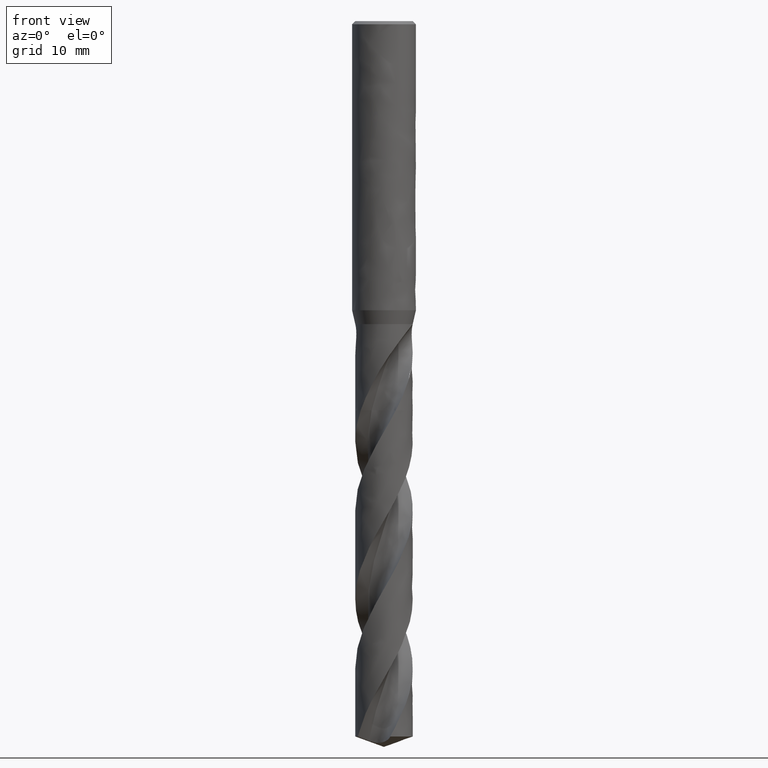
[diagram: clean part render]
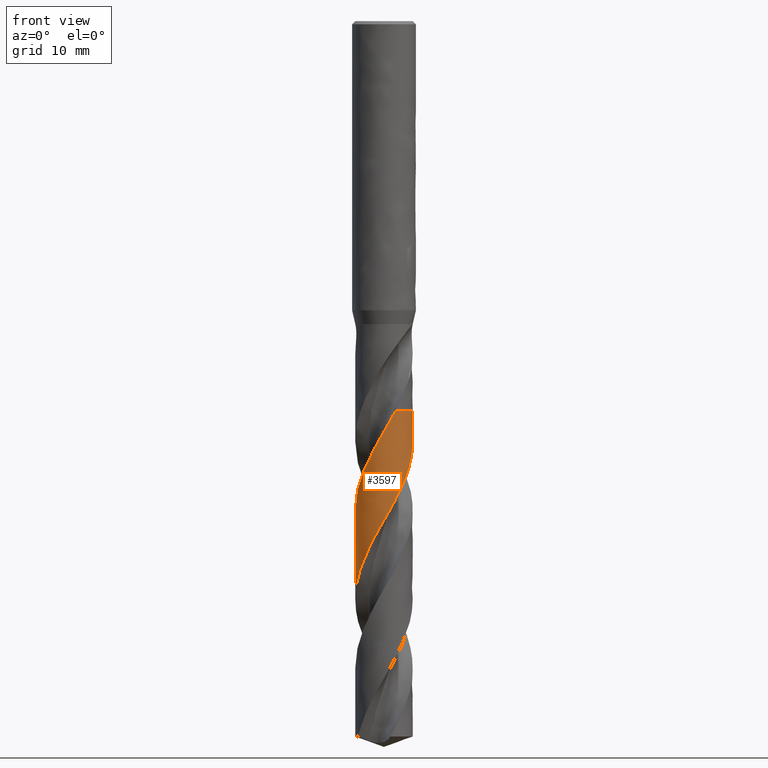
[diagram: same view with one face highlighted and labeled with its STEP entity id]
A machine part, front view. The second image highlights one B-rep face of the part: STEP entity #3597.
In plain terms, the highlighted face is a freeform B-spline surface patch.
Its self-contained STEP definition (entity closure, byte-faithful):
#1922 = VERTEX_POINT('', #1923);
#1923 = CARTESIAN_POINT('', (1.48565845238929, -3.27914912177599, -48.8));
#1996 = EDGE_CURVE('', #1997, #1922, #1999, .T.);
#1997 = VERTEX_POINT('', #1998);
#1998 = CARTESIAN_POINT('', (2.91789542748924, 2.10852703901026, -48.8));
#1999 = CIRCLE('', #2000, 3.6);
#2000 = AXIS2_PLACEMENT_3D('', #2001, #2002, #2003);
#2001 = CARTESIAN_POINT('', (1.82970693484747E-31, 2.98813818991954E-15, -48.8));
#2002 = DIRECTION('', (3.74939945665464E-33, 6.12323399573677E-17, -1.));
#2003 = DIRECTION('', (-1., 6.12323399573677E-17, 0.));
#3193 = EDGE_CURVE('', #1997, #3194, #3196, .T.);
#3194 = VERTEX_POINT('', #3195);
#3195 = CARTESIAN_POINT('', (-3.6, 4.65859184901154E-15, -72.4805785350525));
#3196 = B_SPLINE_CURVE_WITH_KNOTS('', 3, (#3197, #3198, #3199, #3200, #3201, #3202, #3203, #3204, #3205, #3206, #3207, #3208, #3209, #3210, #3211, #3212, #3213, #3214, #3215, #3216, #3217, #3218, #3219, #3220, #3221, #3222, #3223, #3224, #3225, #3226, #3227, #3228, #3229, #3230, #3231, #3232, #3233, #3234, #3235, #3236, #3237, #3238, #3239, #3240, #3241, #3242, #3243, #3244, #3245, #3246, #3247, #3248, #3249, #3250, #3251, #3252, #3253, #3254, #3255, #3256, #3257, #3258, #3259, #3260, #3261, #3262, #3263, #3264, #3265, #3266, #3267, #3268, #3269, #3270, #3271, #3272, #3273, #3274, #3275, #3276, #3277, #3278, #3279, #3280, #3281, #3282, #3283, #3284, #3285, #3286, #3287, #3288, #3289, #3290, #3291, #3292, #3293, #3294, #3295, #3296, #3297, #3298, #3299, #3300, #3301, #3302, #3303, #3304, #3305, #3306, #3307, #3308, #3309, #3310, #3311, #3312, #3313, #3314, #3315, #3316, #3317, #3318, #3319, #3320, #3321, #3322, #3323, #3324, #3325, #3326, #3327, #3328, #3329), .UNSPECIFIED., .F., .U., (4, 3, 3, 3, 3, 3, 3, 3, 3, 3, 3, 3, 3, 3, 3, 3, 3, 3, 3, 3, 3, 3, 3, 3, 3, 3, 3, 3, 3, 3, 3, 3, 3, 3, 3, 3, 3, 3, 3, 3, 3, 3, 3, 3, 4), (10.2688327684211, 10.5904762975584, 11.2550290365994, 11.9194064326622, 12.5836084944612, 13.2476331349285, 13.9114769530557, 14.5751360851994, 14.7720541362325, 14.8304380506915, 15.496953751672, 16.1632626883589, 16.8293726199015, 17.4952901409352, 18.1610208920018, 18.8265695075626, 19.4919396895835, 20.1571342652735, 20.8221552275591, 21.4870037605992, 22.151680263969, 22.8161845303054, 23.4805156967486, 24.1446721408448, 24.8086514421674, 25.4724503295536, 26.1360646123165, 26.1944452534782, 26.8609558360511, 27.5272609980883, 28.1933685234551, 28.8592850759449, 29.525016222846, 30.1905665339922, 30.8559396584352, 31.5211383816956, 32.186164666255, 32.8510196858809, 33.5157039628795, 34.1802173565932, 34.8445590028556, 35.50872728991, 36.1727198211926, 36.8365333639412, 37.5558622147171), .UNSPECIFIED.);
#3197 = CARTESIAN_POINT('', (2.91789542748924, 2.10852703901026, -48.8));
#3198 = CARTESIAN_POINT('', (2.94917599764512, 2.06523926942588, -48.8929658325838));
#3199 = CARTESIAN_POINT('', (2.97949861552765, 2.0212470603507, -48.9859578901763));
#3200 = CARTESIAN_POINT('', (3.00881902065553, 1.97661531435469, -49.0789270903738));
#3201 = CARTESIAN_POINT('', (3.06939836944516, 1.88440096410988, -49.2710122126936));
#3202 = CARTESIAN_POINT('', (3.12574751513569, 1.78937817713627, -49.4631500541439));
#3203 = CARTESIAN_POINT('', (3.17760057110447, 1.69199722532769, -49.655239223331));
#3204 = CARTESIAN_POINT('', (3.22943994558684, 1.59464196759139, -49.8472777095775));
#3205 = CARTESIAN_POINT('', (3.27681118113237, 1.49488156992629, -50.0393698026863));
#3206 = CARTESIAN_POINT('', (3.31949058710024, 1.39319138748159, -50.2314159488493));
#3207 = CARTESIAN_POINT('', (3.36215872964725, 1.29152804185192, -50.4234114125691));
#3208 = CARTESIAN_POINT('', (3.40016009890116, 1.1878824149412, -50.6154610447468));
#3209 = CARTESIAN_POINT('', (3.43331678836474, 1.08274458240752, -50.8074634781583));
#3210 = CARTESIAN_POINT('', (3.46646462102957, 0.977634834240515, -50.9994146239732));
#3211 = CARTESIAN_POINT('', (3.49478729288488, 0.870979864099297, -51.1914194777569));
#3212 = CARTESIAN_POINT('', (3.51815239205771, 0.763284839531539, -51.3833776351083));
#3213 = CARTESIAN_POINT('', (3.54151112861738, 0.655619141686287, -51.5752835198163));
#3214 = CARTESIAN_POINT('', (3.55992706850042, 0.546858367860445, -51.767243177248));
#3215 = CARTESIAN_POINT('', (3.57331485248464, 0.43751681683437, -51.9591561630279));
#3216 = CARTESIAN_POINT('', (3.58669891189391, 0.328205685390935, -52.1510157572757));
#3217 = CARTESIAN_POINT('', (3.59506454199886, 0.218257381291735, -52.3429288330733));
#3218 = CARTESIAN_POINT('', (3.5983738684109, 0.108191973538013, -52.5347954919365));
#3219 = CARTESIAN_POINT('', (3.59935579734961, 0.0755338444906271, -52.5917253324098));
#3220 = CARTESIAN_POINT('', (3.59989309422997, 0.0428621076523837, -52.6486567729271));
#3221 = CARTESIAN_POINT('', (3.59998557720696, 0.0101903828132533, -52.7055872055319));
#3222 = CARTESIAN_POINT('', (3.60001299733522, 0.000503595958372986, -52.7224664174166));
#3223 = CARTESIAN_POINT('', (3.60000131947857, -0.00918327486539542, -52.7393456899062));
#3224 = CARTESIAN_POINT('', (3.59995054519472, -0.018869874198466, -52.7562249553113));
#3225 = CARTESIAN_POINT('', (3.5993709016798, -0.129452910715015, -52.9489200754961));
#3226 = CARTESIAN_POINT('', (3.59369044468935, -0.240031647893479, -53.1416695591187));
#3227 = CARTESIAN_POINT('', (3.5829379229799, -0.350079762446544, -53.3343717881018));
#3228 = CARTESIAN_POINT('', (3.57218873688213, -0.460093738237925, -53.5270142376375));
#3229 = CARTESIAN_POINT('', (3.55636503912178, -0.56963460373598, -53.7197108641921));
#3230 = CARTESIAN_POINT('', (3.5355438528677, -0.678181144275187, -53.9123604423755));
#3231 = CARTESIAN_POINT('', (3.51472888523527, -0.786695265438369, -54.1049524822986));
#3232 = CARTESIAN_POINT('', (3.48890849681852, -0.894272518805949, -54.2975984673689));
#3233 = CARTESIAN_POINT('', (3.45820729063265, -1.00040108707238, -54.4901976214364));
#3234 = CARTESIAN_POINT('', (3.42751495270474, -1.10649899936019, -54.6827411418923));
#3235 = CARTESIAN_POINT('', (3.39192843928645, -1.21120499175335, -54.8753384639732));
#3236 = CARTESIAN_POINT('', (3.35161871301049, -1.31402130979601, -55.0678890406552));
#3237 = CARTESIAN_POINT('', (3.31132029240831, -1.4168087909336, -55.2603856126538));
#3238 = CARTESIAN_POINT('', (3.26628013142594, -1.51776171626491, -55.452935991377));
#3239 = CARTESIAN_POINT('', (3.21671382746292, -1.61640098744367, -55.6454395885008));
#3240 = CARTESIAN_POINT('', (3.16716108421319, -1.71501327216655, -55.8378905190775));
#3241 = CARTESIAN_POINT('', (3.11305884016241, -1.81136462762603, -56.0303953245433));
#3242 = CARTESIAN_POINT('', (3.05466525572241, -1.90499873372198, -56.2228532711538));
#3243 = CARTESIAN_POINT('', (2.99628732659854, -1.99860773652027, -56.4152596198015));
#3244 = CARTESIAN_POINT('', (2.93359018760973, -2.08954936195819, -56.6077199045945));
#3245 = CARTESIAN_POINT('', (2.86687223130578, -2.17739376534604, -56.8001332776061));
#3246 = CARTESIAN_POINT('', (2.80017188338861, -2.26521498459702, -56.9924958683503));
#3247 = CARTESIAN_POINT('', (2.72941857802195, -2.34998574855563, -57.1849123959697));
#3248 = CARTESIAN_POINT('', (2.65494840770164, -2.43130601785182, -57.3772820318661));
#3249 = CARTESIAN_POINT('', (2.58049767382938, -2.51260506284865, -57.5696014599756));
#3250 = CARTESIAN_POINT('', (2.50229380314759, -2.59049714310545, -57.7619747282341));
#3251 = CARTESIAN_POINT('', (2.42070788379863, -2.6646150456145, -57.9543012298181));
#3252 = CARTESIAN_POINT('', (2.33914311836707, -2.73871373054286, -58.1465778642319));
#3253 = CARTESIAN_POINT('', (2.25415594530323, -2.80907843764326, -58.3389081260101));
#3254 = CARTESIAN_POINT('', (2.16614956810491, -2.87537754887926, -58.5311918633132));
#3255 = CARTESIAN_POINT('', (2.07816596257158, -2.941659505209, -58.7234258471668));
#3256 = CARTESIAN_POINT('', (1.98711881646878, -3.00391253313455, -58.9157132103256));
#3257 = CARTESIAN_POINT('', (1.89344002992988, -3.06184337500452, -59.1079542559912));
#3258 = CARTESIAN_POINT('', (1.79978551829193, -3.11975920530678, -59.300145486405));
#3259 = CARTESIAN_POINT('', (1.7034516503029, -3.17338544666839, -59.492389996227));
#3260 = CARTESIAN_POINT('', (1.60489490048757, -3.22246991582373, -59.6845882323045));
#3261 = CARTESIAN_POINT('', (1.50636382419117, -3.27154159873103, -59.8767364017445));
#3262 = CARTESIAN_POINT('', (1.4055596266837, -3.31609949446977, -60.068937893084));
#3263 = CARTESIAN_POINT('', (1.30295905249632, -3.35593469953125, -60.2610930405373));
#3264 = CARTESIAN_POINT('', (1.20038546276192, -3.3957594277389, -60.4531976502466));
#3265 = CARTESIAN_POINT('', (1.09596344441922, -3.43088455056103, -60.6453556746756));
#3266 = CARTESIAN_POINT('', (0.990185793523939, -3.46114606659461, -60.8374672583394));
#3267 = CARTESIAN_POINT('', (0.884436355479162, -3.49139951132372, -61.0295276023004));
#3268 = CARTESIAN_POINT('', (0.777277897595626, -3.5168074442571, -61.2216414287738));
#3269 = CARTESIAN_POINT('', (0.669215165956926, -3.53725190814187, -61.4137087612758));
#3270 = CARTESIAN_POINT('', (0.561181796713651, -3.55769081693449, -61.6057239059711));
#3271 = CARTESIAN_POINT('', (0.452189689327991, -3.5731793613002, -61.7977925174252));
#3272 = CARTESIAN_POINT('', (0.342751557508167, -3.58364637901481, -61.989814678904));
#3273 = CARTESIAN_POINT('', (0.233343860787694, -3.59411048581784, -62.1817834383969));
#3274 = CARTESIAN_POINT('', (0.123434679280249, -3.59956118344656, -62.3738055238137));
#3275 = CARTESIAN_POINT('', (0.0135408097294699, -3.59997453414221, -62.565781336953));
#3276 = CARTESIAN_POINT('', (0.00387303323526397, -3.60001089815556, -62.5826701703457));
#3277 = CARTESIAN_POINT('', (-0.00579486498062392, -3.60000831735659, -62.5995590628141));
#3278 = CARTESIAN_POINT('', (-0.0154625313234498, -3.59996679291977, -62.6164479473615));
#3279 = CARTESIAN_POINT('', (-0.125834767702789, -3.59949272350179, -62.8092622100125));
#3280 = CARTESIAN_POINT('', (-0.236207487120797, -3.5939373294855, -63.0021303891101));
#3281 = CARTESIAN_POINT('', (-0.346057210518445, -3.58332867694972, -63.1949517830157));
#3282 = CARTESIAN_POINT('', (-0.455873077905981, -3.57272329403208, -63.3877137487965));
#3283 = CARTESIAN_POINT('', (-0.565223453463357, -3.55706222934346, -63.5805293424253));
#3284 = CARTESIAN_POINT('', (-0.673589575464583, -3.53642150822359, -63.7732984233554));
#3285 = CARTESIAN_POINT('', (-0.781923554356667, -3.51578690946871, -63.9660103259213));
#3286 = CARTESIAN_POINT('', (-0.889330761977647, -3.49016476944, -64.158775678406));
#3287 = CARTESIAN_POINT('', (-0.995301973150113, -3.45967830617875, -64.3514946266165));
#3288 = CARTESIAN_POINT('', (-1.10124280240031, -3.42920058337962, -64.5441583223482));
#3289 = CARTESIAN_POINT('', (-1.20580399861552, -3.39384536595041, -64.7368754775726));
#3290 = CARTESIAN_POINT('', (-1.30849069927774, -3.35378175943274, -64.929546179762));
#3291 = CARTESIAN_POINT('', (-1.41114880973878, -3.31372930749072, -65.1221632382554));
#3292 = CARTESIAN_POINT('', (-1.51198679486594, -3.26895030926487, -65.314833854425));
#3293 = CARTESIAN_POINT('', (-1.610528490631, -3.21965805340658, -65.5074579066117));
#3294 = CARTESIAN_POINT('', (-1.70904341904109, -3.17037918704093, -65.7000296354002));
#3295 = CARTESIAN_POINT('', (-1.80531390627612, -3.11656423011123, -65.8926550236096));
#3296 = CARTESIAN_POINT('', (-1.89888636827111, -3.05846866264707, -66.0852337553423));
#3297 = CARTESIAN_POINT('', (-1.99243391885702, -3.00038856172525, -66.2777612176366));
#3298 = CARTESIAN_POINT('', (-2.08333251070865, -2.93800057612044, -66.4703423745903));
#3299 = CARTESIAN_POINT('', (-2.17115462177291, -2.87160018253832, -66.6628768666211));
#3300 = CARTESIAN_POINT('', (-2.25895371375289, -2.80521719318661, -66.8553608933689));
#3301 = CARTESIAN_POINT('', (-2.34372253080104, -2.73479018552595, -67.0478985286513));
#3302 = CARTESIAN_POINT('', (-2.42506275947583, -2.66065229081205, -67.2403896249319));
#3303 = CARTESIAN_POINT('', (-2.50638190241657, -2.58653361477946, -67.4328308219668));
#3304 = CARTESIAN_POINT('', (-2.5843158091847, -2.50866806111225, -67.6253253828675));
#3305 = CARTESIAN_POINT('', (-2.65849825937009, -2.42742394421045, -67.8177736954477));
#3306 = CARTESIAN_POINT('', (-2.7326616052694, -2.34620075019333, -68.0101724466073));
#3307 = CARTESIAN_POINT('', (-2.80311387087584, -2.261558603129, -68.2026242521225));
#3308 = CARTESIAN_POINT('', (-2.86952394973271, -2.17389795112612, -68.3950300734631));
#3309 = CARTESIAN_POINT('', (-2.9359169736964, -2.08625981141479, -68.5873864827146));
#3310 = CARTESIAN_POINT('', (-2.99830457744084, -1.99555893039083, -68.7797958151115));
#3311 = CARTESIAN_POINT('', (-3.0563939337948, -1.90222399350401, -68.9721592252963));
#3312 = CARTESIAN_POINT('', (-3.11446835599073, -1.80891305204053, -69.1644731808866));
#3313 = CARTESIAN_POINT('', (-3.16827697082298, -1.71292087603682, -69.356840113716));
#3314 = CARTESIAN_POINT('', (-3.21756789785887, -1.61470022687434, -69.549161034094));
#3315 = CARTESIAN_POINT('', (-3.26684608536059, -1.51650496342464, -69.7414322479826));
#3316 = CARTESIAN_POINT('', (-3.31163429124059, -1.41603188353586, -69.9337565701992));
#3317 = CARTESIAN_POINT('', (-3.35172360719748, -1.3137537291879, -70.1260347413651));
#3318 = CARTESIAN_POINT('', (-3.39180246189231, -1.21150226420966, -70.3182627377578));
#3319 = CARTESIAN_POINT('', (-3.42720525963071, -1.10739473714154, -70.5105439574352));
#3320 = CARTESIAN_POINT('', (-3.45776756201982, -1.00191990051279, -70.7027789276976));
#3321 = CARTESIAN_POINT('', (-3.48832177684865, -0.896472975200629, -70.8949630277119));
#3322 = CARTESIAN_POINT('', (-3.51405345973113, -0.789606358761562, -71.0872003721171));
#3323 = CARTESIAN_POINT('', (-3.53484372088242, -0.681820994791318, -71.2793914820961));
#3324 = CARTESIAN_POINT('', (-3.55562837772614, -0.574064685883245, -71.4715307842559));
#3325 = CARTESIAN_POINT('', (-3.57148474063179, -0.465335855168378, -71.6637231959877));
#3326 = CARTESIAN_POINT('', (-3.58234022352961, -0.356143963702913, -71.8558695590376));
#3327 = CARTESIAN_POINT('', (-3.59410355997072, -0.237820258710882, -72.0640852907341));
#3328 = CARTESIAN_POINT('', (-3.6, -0.118892512444974, -72.2723545290932));
#3329 = CARTESIAN_POINT('', (-3.6, 4.04146397243279E-15, -72.4805785350525));
#3597 = ADVANCED_FACE('', (#3598), #3692, .T.);
#3598 = FACE_OUTER_BOUND('', #3599, .T.);
#3599 = EDGE_LOOP('', (#3600, #3601, #3619, #3685, #3691));
#3600 = ORIENTED_EDGE('', *, *, #1996, .T.);
#3601 = ORIENTED_EDGE('', *, *, #3602, .T.);
#3602 = EDGE_CURVE('', #1922, #3603, #3605, .T.);
#3603 = VERTEX_POINT('', #3604);
#3604 = CARTESIAN_POINT('', (0.575137813359913, -3.55376089455151, -50.4543942545865));
#3605 = B_SPLINE_CURVE_WITH_KNOTS('', 3, (#3606, #3607, #3608, #3609, #3610, #3611, #3612, #3613, #3614, #3615, #3616, #3617, #3618), .UNSPECIFIED., .F., .U., (4, 3, 3, 3, 4), (4.31228855287666, 4.6785391982865, 5.34269317664626, 6.00666439698617, 6.22179238856214), .UNSPECIFIED.);
#3606 = CARTESIAN_POINT('', (1.48565845238929, -3.27914912177599, -48.8));
#3607 = CARTESIAN_POINT('', (1.43010571945915, -3.30431796410857, -48.9057582906757));
#3608 = CARTESIAN_POINT('', (1.37390282636271, -3.32807897345134, -49.0115491892231));
#3609 = CARTESIAN_POINT('', (1.31715040854091, -3.35039024611764, -49.1173119567285));
#3610 = CARTESIAN_POINT('', (1.21423633985522, -3.39084920691215, -49.3091007322061));
#3611 = CARTESIAN_POINT('', (1.10943024564872, -3.42657141038412, -49.500941058696));
#3612 = CARTESIAN_POINT('', (1.00323449107107, -3.45738637643013, -49.6927327869287));
#3613 = CARTESIAN_POINT('', (0.897067958822056, -3.48819286299343, -49.8844717390318));
#3614 = CARTESIAN_POINT('', (0.789458777970215, -3.51411042841998, -50.0762648656304));
#3615 = CARTESIAN_POINT('', (0.680922230517774, -3.53501696120191, -50.2680119195632));
#3616 = CARTESIAN_POINT('', (0.64575617399189, -3.54179071926614, -50.3301383451363));
#3617 = CARTESIAN_POINT('', (0.610488841522032, -3.54803971250227, -50.3922669581037));
#3618 = CARTESIAN_POINT('', (0.575137813359997, -3.5537608945515, -50.4543942545863));
#3619 = ORIENTED_EDGE('', *, *, #3620, .T.);
#3620 = EDGE_CURVE('', #3603, #3621, #3623, .T.);
#3621 = VERTEX_POINT('', #3622);
#3622 = CARTESIAN_POINT('', (-3.6, 3.97359197793741E-15, -61.2936816836329));
#3623 = B_SPLINE_CURVE_WITH_KNOTS('', 3, (#3624, #3625, #3626, #3627, #3628, #3629, #3630, #3631, #3632, #3633, #3634, #3635, #3636, #3637, #3638, #3639, #3640, #3641, #3642, #3643, #3644, #3645, #3646, #3647, #3648, #3649, #3650, #3651, #3652, #3653, #3654, #3655, #3656, #3657, #3658, #3659, #3660, #3661, #3662, #3663, #3664, #3665, #3666, #3667, #3668, #3669, #3670, #3671, #3672, #3673, #3674, #3675, #3676, #3677, #3678, #3679, #3680, #3681, #3682, #3683, #3684), .UNSPECIFIED., .F., .U., (4, 3, 3, 3, 3, 3, 3, 3, 3, 3, 3, 3, 3, 3, 3, 3, 3, 3, 3, 3, 4), (0., 0.66372381697545, 1.10642865111097, 1.16480280980698, 1.83133997058932, 2.49766730194379, 3.16379283118719, 3.82972337235012, 4.4954647683748, 5.16102187573037, 5.82639859425428, 6.49159793214113, 7.15662204886815, 7.8214722833846, 8.48614917178621, 9.15065255685542, 9.81498168556948, 10.4791350431885, 11.1431103123068, 11.8069043214462, 12.5022924759629), .UNSPECIFIED.);
#3624 = CARTESIAN_POINT('', (0.575137813359913, -3.55376089455151, -50.4543942545865));
#3625 = CARTESIAN_POINT('', (0.466071023985707, -3.57141217628153, -50.6460725483209));
#3626 = CARTESIAN_POINT('', (0.356172011804621, -3.58404016954607, -50.8378072186316));
#3627 = CARTESIAN_POINT('', (0.24596549527892, -3.59158752853561, -51.0294977548289));
#3628 = CARTESIAN_POINT('', (0.172457574708142, -3.5966216289011, -51.1573556452076));
#3629 = CARTESIAN_POINT('', (0.0987913325334737, -3.59939822987528, -51.2852313827033));
#3630 = CARTESIAN_POINT('', (0.0251226125500178, -3.59991233981311, -51.413094794484));
#3631 = CARTESIAN_POINT('', (0.0154088050203499, -3.59998012930349, -51.4299546038088));
#3632 = CARTESIAN_POINT('', (0.00569478851356756, -3.6000086011976, -51.4468144966602));
#3633 = CARTESIAN_POINT('', (-0.00401907762509382, -3.59999775652916, -51.4636744050122));
#3634 = CARTESIAN_POINT('', (-0.114935498536626, -3.59987392820046, -51.6561869087482));
#3635 = CARTESIAN_POINT('', (-0.225863729813669, -3.59461863705556, -51.8487573985035));
#3636 = CARTESIAN_POINT('', (-0.336273287723603, -3.58426007370608, -52.0412826216392));
#3637 = CARTESIAN_POINT('', (-0.446648088120031, -3.5739047712872, -52.2337472368151));
#3638 = CARTESIAN_POINT('', (-0.556561723033484, -3.55844403776045, -52.4262695989985));
#3639 = CARTESIAN_POINT('', (-0.665488832344058, -3.53795486319811, -52.6187469626768));
#3640 = CARTESIAN_POINT('', (-0.774382952282028, -3.51747189393231, -52.8111660331762));
#3641 = CARTESIAN_POINT('', (-0.882348289121981, -3.49195275605932, -53.0036424707788));
#3642 = CARTESIAN_POINT('', (-0.988868532452431, -3.46152264553132, -53.1960743449914));
#3643 = CARTESIAN_POINT('', (-1.09535759520675, -3.43110144249686, -53.3884498905989));
#3644 = CARTESIAN_POINT('', (-1.20045937512588, -3.39575584765671, -53.5808823773665));
#3645 = CARTESIAN_POINT('', (-1.30367111360113, -3.35565815117725, -53.7732706109104));
#3646 = CARTESIAN_POINT('', (-1.40685353670888, -3.3155718436999, -53.9656042001681));
#3647 = CARTESIAN_POINT('', (-1.50820253995027, -3.27071456680578, -54.1579946211399));
#3648 = CARTESIAN_POINT('', (-1.60723414459537, -3.22130383609601, -54.3503408064789));
#3649 = CARTESIAN_POINT('', (-1.70623833558898, -3.17190678312636, -54.5426337470855));
#3650 = CARTESIAN_POINT('', (-1.80297926533496, -3.11793246286346, -54.7349836253337));
#3651 = CARTESIAN_POINT('', (-1.89699635626857, -3.05964129013579, -54.9272891101175));
#3652 = CARTESIAN_POINT('', (-1.99098796534194, -3.00136591631767, -55.119542473511));
#3653 = CARTESIAN_POINT('', (-2.08230659461591, -2.93874545842312, -55.311852958803));
#3654 = CARTESIAN_POINT('', (-2.17051899452438, -2.87208065597206, -55.504118853133));
#3655 = CARTESIAN_POINT('', (-2.25870787817317, -2.80543362547603, -55.6963334919172));
#3656 = CARTESIAN_POINT('', (-2.34383777866881, -2.73470999346533, -55.8886053922739));
#3657 = CARTESIAN_POINT('', (-2.4255060950974, -2.66024814305834, -56.0808325811984));
#3658 = CARTESIAN_POINT('', (-2.50715289915172, -2.58580590675954, -56.2730091352694));
#3659 = CARTESIAN_POINT('', (-2.58538174599498, -2.50758932699892, -56.465242941152));
#3660 = CARTESIAN_POINT('', (-2.65982350720461, -2.42597174561489, -56.657432091962));
#3661 = CARTESIAN_POINT('', (-2.73424580431109, -2.34437550457795, -56.8495709915503));
#3662 = CARTESIAN_POINT('', (-2.80492120585305, -2.25933813020591, -57.0417668968303));
#3663 = CARTESIAN_POINT('', (-2.87151650138203, -2.17126529523471, -57.2339184618681));
#3664 = CARTESIAN_POINT('', (-2.93809443354834, -2.08321542345579, -57.4260199273113));
#3665 = CARTESIAN_POINT('', (-3.00062915722101, -1.99208563938371, -57.6181779403465));
#3666 = CARTESIAN_POINT('', (-3.05882581233746, -1.89831099922485, -57.8102920735944));
#3667 = CARTESIAN_POINT('', (-3.11700727614251, -1.80456083744465, -58.0023560585027));
#3668 = CARTESIAN_POINT('', (-3.17088389351765, -1.70811729436589, -58.1944762437607));
#3669 = CARTESIAN_POINT('', (-3.2202019877296, -1.60944063519669, -58.3865527711702));
#3670 = CARTESIAN_POINT('', (-3.26950714898811, -1.51078985254723, -58.5785789293018));
#3671 = CARTESIAN_POINT('', (-3.31428247126614, -1.40985456354855, -58.7706612740252));
#3672 = CARTESIAN_POINT('', (-3.3543180282684, -1.3071153603388, -58.9626998939698));
#3673 = CARTESIAN_POINT('', (-3.39434299248856, -1.20440334031502, -59.1546877034997));
#3674 = CARTESIAN_POINT('', (-3.42965179301254, -1.09983433498751, -59.3467318664576));
#3675 = CARTESIAN_POINT('', (-3.46008000679804, -0.993904596305165, -59.5387321010794));
#3676 = CARTESIAN_POINT('', (-3.49050006145145, -0.888003262008838, -59.7306808520588));
#3677 = CARTESIAN_POINT('', (-3.51605790010527, -0.78068722579962, -59.922686159359));
#3678 = CARTESIAN_POINT('', (-3.53663570349869, -0.672464051632803, -60.1146473375023));
#3679 = CARTESIAN_POINT('', (-3.55720788931511, -0.564270421533628, -60.3065561117675));
#3680 = CARTESIAN_POINT('', (-3.57281324837404, -0.455115133848769, -60.4985215543112));
#3681 = CARTESIAN_POINT('', (-3.58338118482116, -0.34551307394936, -60.6904427914069));
#3682 = CARTESIAN_POINT('', (-3.59445211604656, -0.23069436043989, -60.8914987711822));
#3683 = CARTESIAN_POINT('', (-3.6, -0.115327286977716, -61.0926119783764));
#3684 = CARTESIAN_POINT('', (-3.6, 3.41848046562483E-15, -61.2936816836329));
#3685 = ORIENTED_EDGE('', *, *, #3686, .T.);
#3686 = EDGE_CURVE('', #3621, #3194, #3687, .T.);
#3687 = LINE('', #3688, #3689);
#3688 = CARTESIAN_POINT('', (-3.6, 3.97359197793741E-15, -61.2936816836329));
#3689 = VECTOR('', #3690, 11.1868968514196);
#3690 = DIRECTION('', (0., 6.8499987107413E-16, -11.1868968514196));
#3691 = ORIENTED_EDGE('', *, *, #3193, .F.);
#3692 = (
   BOUNDED_SURFACE ()
   B_SPLINE_SURFACE (2, 1, ((#3693, #3694), (#3695, #3696), (#3697, #3698), (#3699, #3700), (#3701, #3702), (#3703, #3704), (#3705, #3706)), .UNSPECIFIED., .F., .F., .U.)
   B_SPLINE_SURFACE_WITH_KNOTS ((3, 2, 2, 3), (2, 2), (9.02835615267519, 11.3097335529233, 16.9646003293849, 22.6194671058465), (0.208939082732108, 0.667068560295026), .UNSPECIFIED.)
   GEOMETRIC_REPRESENTATION_ITEM ()
   RATIONAL_B_SPLINE_SURFACE (((0.859015607028685, 0.859015607028685), (0.881836301985344, 0.881836301985344), (1., 1.), (0.707106781186548, 0.707106781186548), (1., 1.), (0.707106781186548, 0.707106781186548), (1., 1.)))
   REPRESENTATION_ITEM ('')
   SURFACE ()
);
#3693 = CARTESIAN_POINT('', (2.91789542748922, 2.10852703901029, -48.8));
#3694 = CARTESIAN_POINT('', (2.91789542748922, 2.10852703901029, -72.4805785350524));
#3695 = CARTESIAN_POINT('', (3.6, 1.1645932993069, -48.8));
#3696 = CARTESIAN_POINT('', (3.6, 1.16459329930691, -72.4805785350524));
#3697 = CARTESIAN_POINT('', (3.6, 3.20857461376607E-15, -48.8));
#3698 = CARTESIAN_POINT('', (3.6, 4.65859184901154E-15, -72.4805785350525));
#3699 = CARTESIAN_POINT('', (3.6, -3.6, -48.8));
#3700 = CARTESIAN_POINT('', (3.6, -3.6, -72.4805785350525));
#3701 = CARTESIAN_POINT('', (4.40872847693047E-16, -3.6, -48.8));
#3702 = CARTESIAN_POINT('', (4.40872847693047E-16, -3.6, -72.4805785350525));
#3703 = CARTESIAN_POINT('', (-3.6, -3.6, -48.8));
#3704 = CARTESIAN_POINT('', (-3.6, -3.6, -72.4805785350525));
#3705 = CARTESIAN_POINT('', (-3.6, 3.20857461376607E-15, -48.8));
#3706 = CARTESIAN_POINT('', (-3.6, 4.65859184901154E-15, -72.4805785350525));